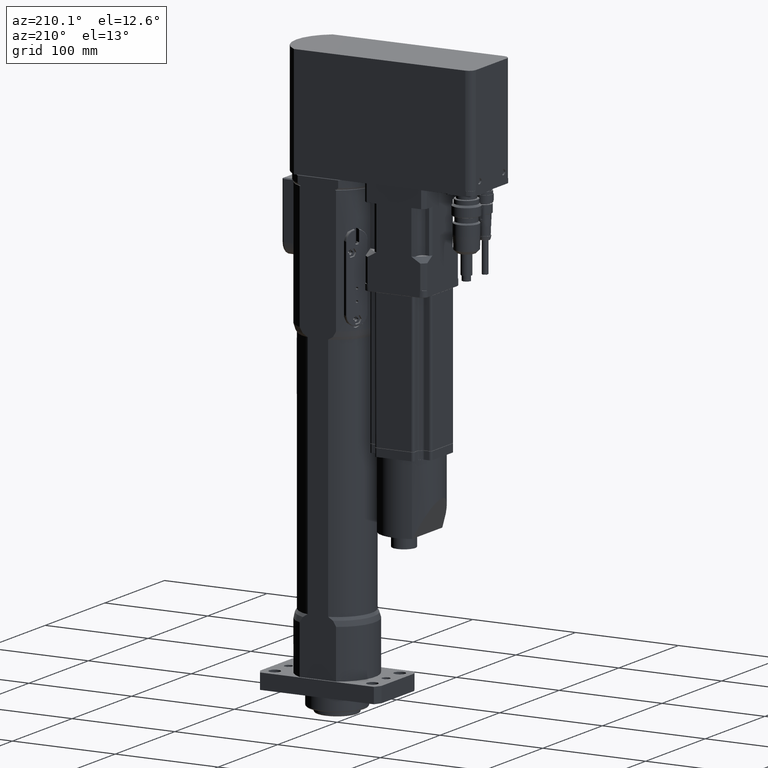
[diagram: clean part render]
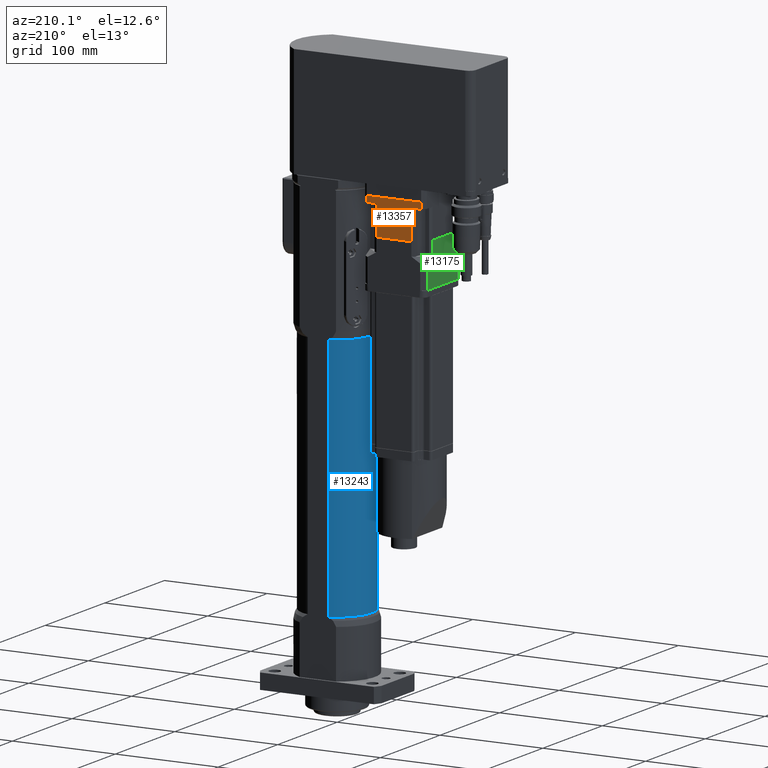
[diagram: same view with three faces highlighted in distinct colors, each labeled with its STEP entity id]
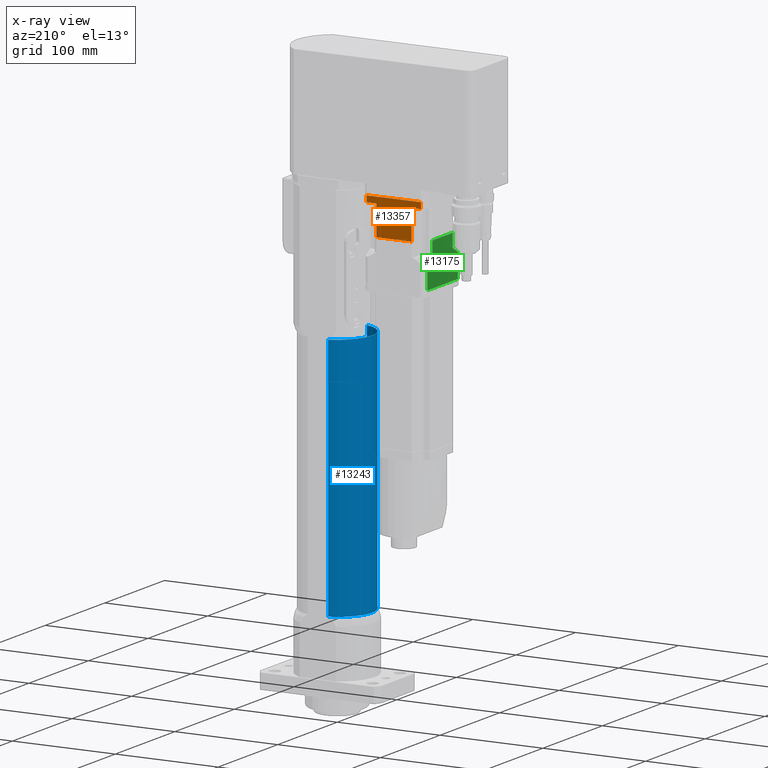
[diagram: x-ray of the same camera — body ghosted, the three highlighted faces saturated]
A machine part, auxiliary view with three faces highlighted in distinct colors.
The next image is the same camera in x-ray (body ghosted, the three faces saturated) — at least one of them is partly hidden behind the body in this view.
Their STEP definitions:

[orange] entity #13357 — the highlighted planar face has unit normal (0, 1, 0).
#791=LINE('',#23843,#1726);
#883=LINE('',#24141,#1818);
#1000=LINE('',#25002,#1935);
#1043=LINE('',#25110,#1978);
#1044=LINE('',#25113,#1979);
#1045=LINE('',#25117,#1980);
#1046=LINE('',#25118,#1981);
#1047=LINE('',#25119,#1982);
#1726=VECTOR('',#17319,34.0734500748);
#1818=VECTOR('',#17595,52.9150262212918);
#1935=VECTOR('',#18116,6.);
#1978=VECTOR('',#18233,29.);
#1979=VECTOR('',#18236,29.);
#1980=VECTOR('',#18241,9.42078807325);
#1981=VECTOR('',#18242,6.);
#1982=VECTOR('',#18243,9.42078807325);
#2598=PLANE('',#14717);
#3512=FACE_OUTER_BOUND('',#4446,.T.);
#4446=EDGE_LOOP('',(#11176,#11177,#11178,#11179,#11180,#11181,#11182,#11183));
#5980=VERTEX_POINT('',#23840);
#5981=VERTEX_POINT('',#23842);
#6057=VERTEX_POINT('',#24135);
#6058=VERTEX_POINT('',#24139);
#6233=VERTEX_POINT('',#24999);
#6262=VERTEX_POINT('',#25108);
#6263=VERTEX_POINT('',#25112);
#6264=VERTEX_POINT('',#25116);
#7506=EDGE_CURVE('',#5980,#5981,#791,.T.);
#7635=EDGE_CURVE('',#6057,#6058,#883,.T.);
#7892=EDGE_CURVE('',#6058,#6233,#1000,.T.);
#7948=EDGE_CURVE('',#5980,#6262,#1043,.T.);
#7949=EDGE_CURVE('',#5981,#6263,#1044,.T.);
#7951=EDGE_CURVE('',#6264,#6262,#1045,.T.);
#7952=EDGE_CURVE('',#6057,#6264,#1046,.T.);
#7953=EDGE_CURVE('',#6263,#6233,#1047,.T.);
#11176=ORIENTED_EDGE('',*,*,#7951,.F.);
#11177=ORIENTED_EDGE('',*,*,#7952,.F.);
#11178=ORIENTED_EDGE('',*,*,#7635,.T.);
#11179=ORIENTED_EDGE('',*,*,#7892,.T.);
#11180=ORIENTED_EDGE('',*,*,#7953,.F.);
#11181=ORIENTED_EDGE('',*,*,#7949,.F.);
#11182=ORIENTED_EDGE('',*,*,#7506,.F.);
#11183=ORIENTED_EDGE('',*,*,#7948,.T.);
#13357=ADVANCED_FACE('',(#3512),#2598,.T.);
#14717=AXIS2_PLACEMENT_3D('',#25115,#18239,#18240);
#17319=DIRECTION('',(1.,-1.67849944170064E-16,5.40621472491078E-16));
#17595=DIRECTION('',(1.,-1.67849944170063E-16,0.));
#18116=DIRECTION('',(5.40621472491078E-16,4.44645409684621E-31,-1.));
#18233=DIRECTION('',(-5.40621472491078E-16,-4.44645409684621E-31,1.));
#18236=DIRECTION('',(-5.40621472491078E-16,-4.44645409684621E-31,1.));
#18239=DIRECTION('center_axis',(1.67849944170064E-16,1.,5.35388693659386E-31));
#18240=DIRECTION('ref_axis',(1.,0.,0.));
#18241=DIRECTION('',(1.,-1.67849944170064E-16,5.40621472491078E-16));
#18242=DIRECTION('',(5.40621472491078E-16,4.44645409684621E-31,-1.));
#18243=DIRECTION('',(1.,-1.67849944170064E-16,5.40621472491078E-16));
#23840=CARTESIAN_POINT('',(-89.5367250374002,30.,416.));
#23842=CARTESIAN_POINT('',(-55.4632749626002,30.,416.));
#23843=CARTESIAN_POINT('',(-89.5367250374002,30.,416.));
#24135=CARTESIAN_POINT('',(-98.9575131106459,30.,451.));
#24139=CARTESIAN_POINT('',(-46.0424868893541,30.,451.));
#24141=CARTESIAN_POINT('',(-98.9575131106459,30.,451.));
#24999=CARTESIAN_POINT('',(-46.0424868893502,30.,445.));
#25002=CARTESIAN_POINT('',(-46.0424868893502,30.,451.));
#25108=CARTESIAN_POINT('',(-89.5367250374002,30.,445.));
#25110=CARTESIAN_POINT('',(-89.5367250374002,30.,416.));
#25112=CARTESIAN_POINT('',(-55.4632749626002,30.,445.));
#25113=CARTESIAN_POINT('',(-55.4632749626002,30.,416.));
#25115=CARTESIAN_POINT('Origin',(-98.9575131106502,30.,451.));
#25116=CARTESIAN_POINT('',(-98.9575131106502,30.,445.));
#25117=CARTESIAN_POINT('',(-98.9575131106502,30.,445.));
#25118=CARTESIAN_POINT('',(-98.9575131106502,30.,451.));
#25119=CARTESIAN_POINT('',(-55.4632749626002,30.,445.));

[blue] entity #13243 — the highlighted cylindrical surface (partial cylindrical patch) has radius 34 mm, axis along (0, 0, 1).
#906=LINE('',#24335,#1841);
#907=LINE('',#24337,#1842);
#1841=VECTOR('',#17734,239.);
#1842=VECTOR('',#17735,239.);
#3398=FACE_OUTER_BOUND('',#4307,.T.);
#4307=EDGE_LOOP('',(#10630,#10631,#10632,#10633));
#5069=CIRCLE('',#14532,34.);
#5070=CIRCLE('',#14534,34.);
#6111=VERTEX_POINT('',#24324);
#6112=VERTEX_POINT('',#24328);
#6113=VERTEX_POINT('',#24334);
#6114=VERTEX_POINT('',#24336);
#7701=EDGE_CURVE('',#6111,#6112,#5069,.T.);
#7703=EDGE_CURVE('',#6113,#6112,#906,.T.);
#7704=EDGE_CURVE('',#6111,#6114,#907,.T.);
#7705=EDGE_CURVE('',#6113,#6114,#5070,.T.);
#10630=ORIENTED_EDGE('',*,*,#7703,.T.);
#10631=ORIENTED_EDGE('',*,*,#7701,.F.);
#10632=ORIENTED_EDGE('',*,*,#7704,.T.);
#10633=ORIENTED_EDGE('',*,*,#7705,.F.);
#11833=CYLINDRICAL_SURFACE('',#14533,34.);
#13243=ADVANCED_FACE('',(#3398),#11833,.T.);
#14532=AXIS2_PLACEMENT_3D('',#24329,#17730,#17731);
#14533=AXIS2_PLACEMENT_3D('',#24333,#17732,#17733);
#14534=AXIS2_PLACEMENT_3D('',#24338,#17736,#17737);
#17730=DIRECTION('center_axis',(0.,0.,-1.));
#17731=DIRECTION('ref_axis',(-1.,0.,0.));
#17732=DIRECTION('center_axis',(0.,0.,1.));
#17733=DIRECTION('ref_axis',(-1.,0.,0.));
#17734=DIRECTION('',(0.,0.,-1.));
#17735=DIRECTION('',(0.,0.,1.));
#17736=DIRECTION('center_axis',(0.,0.,1.));
#17737=DIRECTION('ref_axis',(-1.,0.,0.));
#24324=CARTESIAN_POINT('',(-9.98749217771901,-32.5,84.));
#24328=CARTESIAN_POINT('',(-9.98749217771911,32.5,84.));
#24329=CARTESIAN_POINT('Origin',(0.,0.,84.));
#24333=CARTESIAN_POINT('Origin',(0.,0.,84.));
#24334=CARTESIAN_POINT('',(-9.98749217771911,32.5,323.));
#24335=CARTESIAN_POINT('',(-9.98749217771911,32.5,84.));
#24336=CARTESIAN_POINT('',(-9.98749217771901,-32.5,323.));
#24337=CARTESIAN_POINT('',(-9.98749217771901,-32.5,84.));
#24338=CARTESIAN_POINT('Origin',(0.,0.,323.));

[green] entity #13175 — the highlighted planar face has unit normal (-1, 0, -0).
#31=(
BOUNDED_CURVE()
B_SPLINE_CURVE(2,(#23784,#23785,#23786),.UNSPECIFIED.,.F.,.F.)
B_SPLINE_CURVE_WITH_KNOTS((3,3),(-10.6524120970008,-9.4942813080497),
 .UNSPECIFIED.)
CURVE()
GEOMETRIC_REPRESENTATION_ITEM()
RATIONAL_B_SPLINE_CURVE((1.35251798561204,1.41367336988718,1.45736434108529))
REPRESENTATION_ITEM('')
);
#32=(
BOUNDED_CURVE()
B_SPLINE_CURVE(2,(#23792,#23793,#23794),.UNSPECIFIED.,.F.,.F.)
B_SPLINE_CURVE_WITH_KNOTS((3,3),(-3.69965669392681,-2.54152590497577),
 .UNSPECIFIED.)
CURVE()
GEOMETRIC_REPRESENTATION_ITEM()
RATIONAL_B_SPLINE_CURVE((1.45736434108529,1.41367336988718,1.35251798561204))
REPRESENTATION_ITEM('')
);
#767=LINE('',#23660,#1702);
#773=LINE('',#23701,#1708);
#780=LINE('',#23728,#1715);
#810=LINE('',#23895,#1745);
#811=LINE('',#23898,#1746);
#812=LINE('',#23900,#1747);
#813=LINE('',#23901,#1748);
#814=LINE('',#23902,#1749);
#1702=VECTOR('',#17133,50.);
#1708=VECTOR('',#17187,0.695330315059977);
#1715=VECTOR('',#17220,0.695330315060029);
#1745=VECTOR('',#17374,13.);
#1746=VECTOR('',#17379,23.5);
#1747=VECTOR('',#17380,13.);
#1748=VECTOR('',#17381,34.0734500748);
#1749=VECTOR('',#17382,23.5);
#2516=PLANE('',#14403);
#3330=FACE_OUTER_BOUND('',#4219,.T.);
#4219=EDGE_LOOP('',(#10316,#10317,#10318,#10319,#10320,#10321,#10322,#10323,
#10324,#10325));
#5926=VERTEX_POINT('',#23653);
#5927=VERTEX_POINT('',#23658);
#5938=VERTEX_POINT('',#23699);
#5945=VERTEX_POINT('',#23727);
#5961=VERTEX_POINT('',#23772);
#5965=VERTEX_POINT('',#23782);
#5966=VERTEX_POINT('',#23788);
#5968=VERTEX_POINT('',#23791);
#5996=VERTEX_POINT('',#23894);
#5997=VERTEX_POINT('',#23899);
#7431=EDGE_CURVE('',#5927,#5926,#767,.T.);
#7449=EDGE_CURVE('',#5938,#5927,#773,.T.);
#7462=EDGE_CURVE('',#5926,#5945,#780,.T.);
#7484=EDGE_CURVE('',#5961,#5965,#31,.T.);
#7486=EDGE_CURVE('',#5968,#5966,#32,.T.);
#7532=EDGE_CURVE('',#5996,#5968,#810,.T.);
#7534=EDGE_CURVE('',#5961,#5938,#811,.T.);
#7535=EDGE_CURVE('',#5997,#5965,#812,.T.);
#7536=EDGE_CURVE('',#5997,#5996,#813,.T.);
#7537=EDGE_CURVE('',#5966,#5945,#814,.T.);
#10316=ORIENTED_EDGE('',*,*,#7449,.F.);
#10317=ORIENTED_EDGE('',*,*,#7534,.F.);
#10318=ORIENTED_EDGE('',*,*,#7484,.T.);
#10319=ORIENTED_EDGE('',*,*,#7535,.F.);
#10320=ORIENTED_EDGE('',*,*,#7536,.T.);
#10321=ORIENTED_EDGE('',*,*,#7532,.T.);
#10322=ORIENTED_EDGE('',*,*,#7486,.T.);
#10323=ORIENTED_EDGE('',*,*,#7537,.T.);
#10324=ORIENTED_EDGE('',*,*,#7462,.F.);
#10325=ORIENTED_EDGE('',*,*,#7431,.F.);
#13175=ADVANCED_FACE('',(#3330),#2516,.T.);
#14403=AXIS2_PLACEMENT_3D('',#23897,#17377,#17378);
#17133=DIRECTION('',(1.70828439083748E-15,1.,1.36818063249271E-30));
#17187=DIRECTION('',(1.70828439083748E-15,1.,1.36818063249271E-30));
#17220=DIRECTION('',(1.70828439083748E-15,1.,1.36818063249271E-30));
#17374=DIRECTION('',(6.12864908203916E-16,3.94430452610506E-31,-1.));
#17377=DIRECTION('center_axis',(-1.,1.70828439083748E-15,-6.12864908203916E-16));
#17378=DIRECTION('ref_axis',(0.,1.,0.));
#17379=DIRECTION('',(6.12864908203916E-16,3.94430452610506E-31,-1.));
#17380=DIRECTION('',(6.12864908203916E-16,3.94430452610506E-31,-1.));
#17381=DIRECTION('',(1.67849944170064E-16,1.,5.35388693659386E-31));
#17382=DIRECTION('',(6.12864908203916E-16,3.94430452610506E-31,-1.));
#23653=CARTESIAN_POINT('',(-102.5,25.0000000000001,374.500000000001));
#23658=CARTESIAN_POINT('',(-102.5,-24.9999999999999,374.500000000001));
#23660=CARTESIAN_POINT('',(-102.5,-25.6953303150599,374.5));
#23699=CARTESIAN_POINT('',(-102.5,-25.6953303150599,374.5));
#23701=CARTESIAN_POINT('',(-102.5,-25.6953303150599,374.5));
#23727=CARTESIAN_POINT('',(-102.5,25.6953303150601,374.5));
#23728=CARTESIAN_POINT('',(-102.5,-25.6953303150599,374.5));
#23772=CARTESIAN_POINT('',(-102.5,-25.6953303150599,398.));
#23782=CARTESIAN_POINT('',(-102.5,-17.0367250373999,403.));
#23784=CARTESIAN_POINT('Ctrl Pts',(-102.5,-25.6953303150174,398.000000000028));
#23785=CARTESIAN_POINT('Ctrl Pts',(-102.5,-21.0735072276415,401.006563819971));
#23786=CARTESIAN_POINT('Ctrl Pts',(-102.5,-17.036725037399,403.000000000001));
#23788=CARTESIAN_POINT('',(-102.5,25.6953303150601,398.));
#23791=CARTESIAN_POINT('',(-102.5,17.0367250374001,403.));
#23792=CARTESIAN_POINT('Ctrl Pts',(-102.5,17.0367250373992,403.000000000001));
#23793=CARTESIAN_POINT('Ctrl Pts',(-102.5,21.0735072276416,401.006563819971));
#23794=CARTESIAN_POINT('Ctrl Pts',(-102.5,25.6953303150175,398.000000000028));
#23894=CARTESIAN_POINT('',(-102.5,17.0367250374,416.));
#23895=CARTESIAN_POINT('',(-102.5,17.0367250374001,416.));
#23897=CARTESIAN_POINT('Origin',(-102.5,-17.0367250373999,416.));
#23898=CARTESIAN_POINT('',(-102.5,-25.6953303150599,398.));
#23899=CARTESIAN_POINT('',(-102.5,-17.0367250374,416.));
#23900=CARTESIAN_POINT('',(-102.5,-17.0367250373999,416.));
#23901=CARTESIAN_POINT('',(-102.5,-17.0367250374,416.));
#23902=CARTESIAN_POINT('',(-102.5,25.6953303150601,398.));